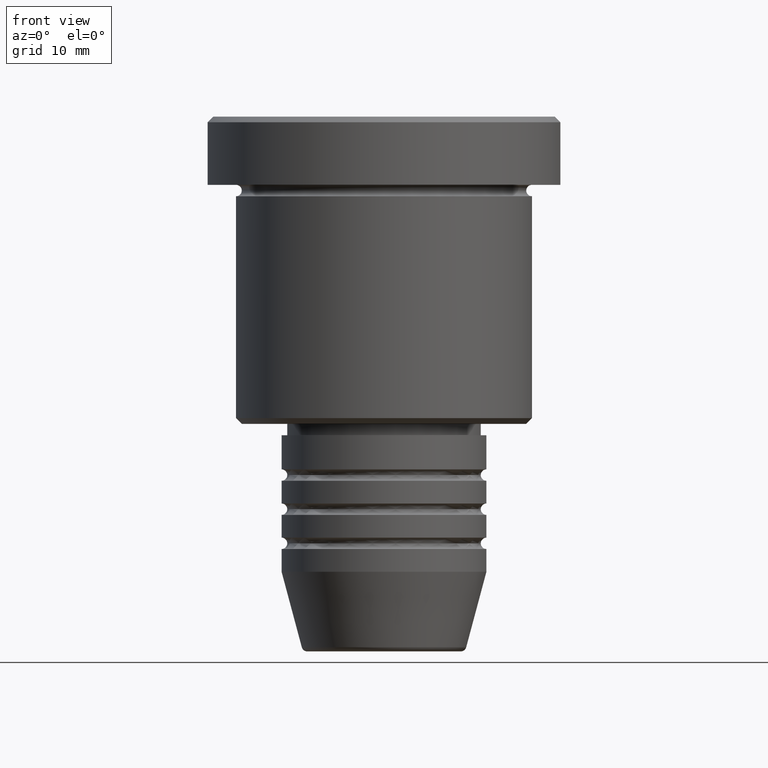
[diagram: clean part render]
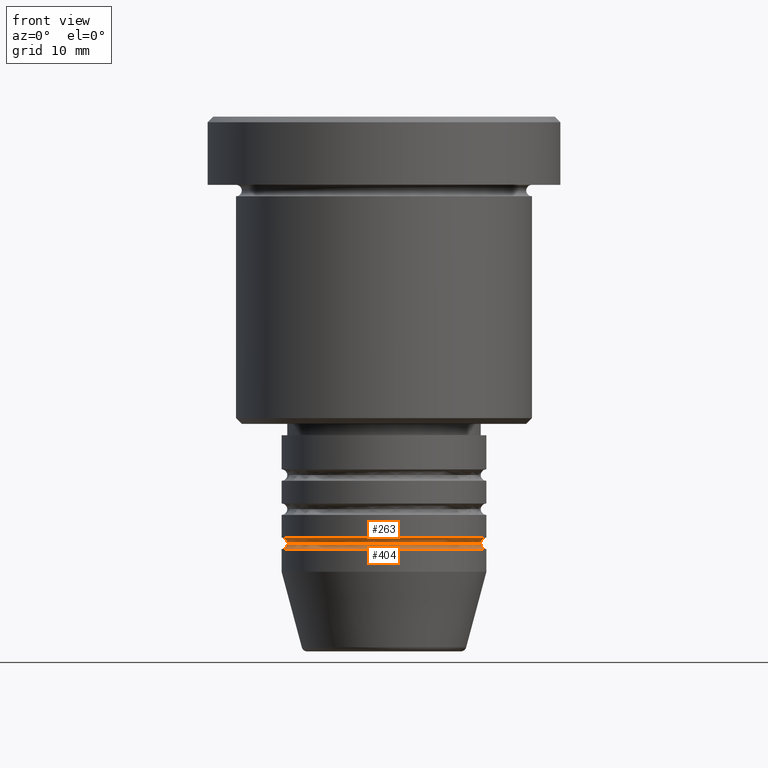
[diagram: same view with one multi-face feature highlighted, each face labeled with its STEP entity id]
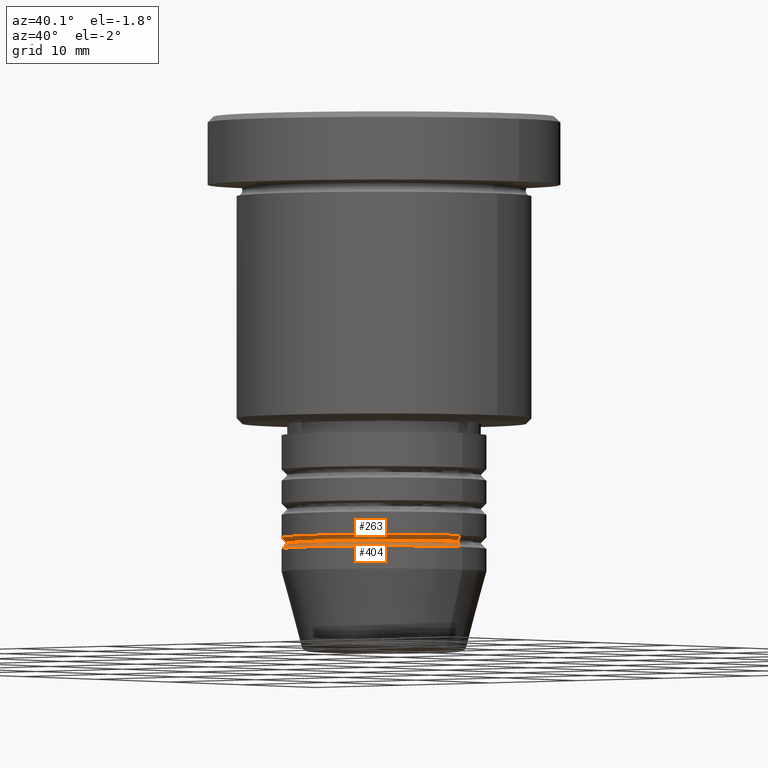
[diagram: same view with one multi-face feature highlighted, each face labeled with its STEP entity id]
A machine part, front view. The highlighted faces form ONE feature: a constant-radius fillet chain: 2 tangent blend faces with common blend radius 0.5 mm. The faces share edges in the B-rep.
A second angle (auxiliary view) of the same feature is appended — it is thin or edge-on in the first view.
Their STEP definitions:
[1] entity #404 (Torus):
#1 = CARTESIAN_POINT ( 'NONE',  ( -9.000000000000001776, 1.102182119232617911E-15, -37.49999999999999289 ) ) ;
#25 = VERTEX_POINT ( 'NONE', #124 ) ;
#124 = CARTESIAN_POINT ( 'NONE',  ( 8.500000000000000000, 0.000000000000000000, -37.49999999999999289 ) ) ;
#197 = ORIENTED_EDGE ( 'NONE', *, *, #983, .T. ) ;
#203 = CIRCLE ( 'NONE', #1178, 9.000000000000000000 ) ;
#226 = DIRECTION ( 'NONE',  ( -0.000000000000000000, -0.000000000000000000, 1.000000000000000000 ) ) ;
#259 = DIRECTION ( 'NONE',  ( -0.000000000000000000, -0.000000000000000000, 1.000000000000000000 ) ) ;
#286 = CIRCLE ( 'NONE', #949, 0.5000000000000004441 ) ;
#303 = CIRCLE ( 'NONE', #550, 8.500000000000000000 ) ;
#350 = DIRECTION ( 'NONE',  ( 0.000000000000000000, -1.000000000000000000, 0.000000000000000000 ) ) ;
#388 = EDGE_LOOP ( 'NONE', ( #428, #197, #1015, #552 ) ) ;
#402 = TOROIDAL_SURFACE ( 'NONE', #756, 9.000000000000001776, 0.5000000000000000000 ) ;
#404 = ADVANCED_FACE ( 'NONE', ( #690 ), #402, .F. ) ;
#412 = CARTESIAN_POINT ( 'NONE',  ( 0.000000000000000000, 0.000000000000000000, -37.49999999999999289 ) ) ;
#419 = CIRCLE ( 'NONE', #1087, 0.5000000000000004441 ) ;
#428 = ORIENTED_EDGE ( 'NONE', *, *, #1012, .F. ) ;
#452 = DIRECTION ( 'NONE',  ( -0.000000000000000000, -0.000000000000000000, 1.000000000000000000 ) ) ;
#550 = AXIS2_PLACEMENT_3D ( 'NONE', #618, #259, #1105 ) ;
#552 = ORIENTED_EDGE ( 'NONE', *, *, #1111, .F. ) ;
#618 = CARTESIAN_POINT ( 'NONE',  ( 0.000000000000000000, 0.000000000000000000, -37.49999999999999289 ) ) ;
#629 = CARTESIAN_POINT ( 'NONE',  ( 0.000000000000000000, 0.000000000000000000, -38.00000000000000000 ) ) ;
#690 = FACE_OUTER_BOUND ( 'NONE', #388, .T. ) ;
#728 = VERTEX_POINT ( 'NONE', #766 ) ;
#756 = AXIS2_PLACEMENT_3D ( 'NONE', #412, #226, #761 ) ;
#761 = DIRECTION ( 'NONE',  ( 1.000000000000000000, 0.000000000000000000, 0.000000000000000000 ) ) ;
#766 = CARTESIAN_POINT ( 'NONE',  ( -8.500000000000000000, 1.071565949253933927E-15, -37.49999999999999289 ) ) ;
#803 = DIRECTION ( 'NONE',  ( -1.000000000000000000, 1.224646799147353454E-16, 0.000000000000000000 ) ) ;
#805 = DIRECTION ( 'NONE',  ( 0.000000000000000000, 0.000000000000000000, -1.000000000000000000 ) ) ;
#810 = DIRECTION ( 'NONE',  ( 1.000000000000000000, 0.000000000000000000, 0.000000000000000000 ) ) ;
#813 = EDGE_CURVE ( 'NONE', #1014, #1080, #203, .T. ) ;
#949 = AXIS2_PLACEMENT_3D ( 'NONE', #1, #1165, #803 ) ;
#983 = EDGE_CURVE ( 'NONE', #728, #1014, #286, .T. ) ;
#1012 = EDGE_CURVE ( 'NONE', #728, #25, #303, .T. ) ;
#1014 = VERTEX_POINT ( 'NONE', #1023 ) ;
#1015 = ORIENTED_EDGE ( 'NONE', *, *, #813, .T. ) ;
#1023 = CARTESIAN_POINT ( 'NONE',  ( -9.000000000000000000, 1.102182119232617714E-15, -38.00000000000000000 ) ) ;
#1079 = CARTESIAN_POINT ( 'NONE',  ( 9.000000000000001776, 0.000000000000000000, -37.49999999999999289 ) ) ;
#1080 = VERTEX_POINT ( 'NONE', #1123 ) ;
#1087 = AXIS2_PLACEMENT_3D ( 'NONE', #1079, #350, #805 ) ;
#1105 = DIRECTION ( 'NONE',  ( 1.000000000000000000, 0.000000000000000000, 0.000000000000000000 ) ) ;
#1111 = EDGE_CURVE ( 'NONE', #25, #1080, #419, .T. ) ;
#1123 = CARTESIAN_POINT ( 'NONE',  ( 9.000000000000000000, 0.000000000000000000, -38.00000000000000000 ) ) ;
#1165 = DIRECTION ( 'NONE',  ( 1.224646799147353207E-16, 1.000000000000000000, 0.000000000000000000 ) ) ;
#1178 = AXIS2_PLACEMENT_3D ( 'NONE', #629, #452, #810 ) ;
[2] entity #263 (Torus):
#25 = VERTEX_POINT ( 'NONE', #124 ) ;
#55 = EDGE_CURVE ( 'NONE', #1058, #493, #401, .T. ) ;
#100 = CARTESIAN_POINT ( 'NONE',  ( -9.000000000000000000, 1.102182119232617714E-15, -36.99999999999998579 ) ) ;
#116 = ORIENTED_EDGE ( 'NONE', *, *, #365, .T. ) ;
#124 = CARTESIAN_POINT ( 'NONE',  ( 8.500000000000000000, 0.000000000000000000, -37.49999999999999289 ) ) ;
#133 = EDGE_LOOP ( 'NONE', ( #968, #116, #711, #1152 ) ) ;
#142 = TOROIDAL_SURFACE ( 'NONE', #771, 9.000000000000001776, 0.5000000000000000000 ) ;
#183 = AXIS2_PLACEMENT_3D ( 'NONE', #212, #1126, #831 ) ;
#212 = CARTESIAN_POINT ( 'NONE',  ( -9.000000000000001776, 0.000000000000000000, -37.49999999999998579 ) ) ;
#259 = DIRECTION ( 'NONE',  ( -0.000000000000000000, -0.000000000000000000, 1.000000000000000000 ) ) ;
#263 = ADVANCED_FACE ( 'NONE', ( #499 ), #142, .F. ) ;
#268 = CARTESIAN_POINT ( 'NONE',  ( 9.000000000000000000, 0.000000000000000000, -36.99999999999998579 ) ) ;
#287 = CIRCLE ( 'NONE', #183, 0.5000000000000004441 ) ;
#303 = CIRCLE ( 'NONE', #550, 8.500000000000000000 ) ;
#365 = EDGE_CURVE ( 'NONE', #25, #493, #947, .T. ) ;
#391 = CARTESIAN_POINT ( 'NONE',  ( 9.000000000000001776, 1.102182119232617911E-15, -37.49999999999998579 ) ) ;
#401 = CIRCLE ( 'NONE', #999, 9.000000000000000000 ) ;
#409 = DIRECTION ( 'NONE',  ( -1.000000000000000000, -1.224646799147353454E-16, 0.000000000000000000 ) ) ;
#488 = DIRECTION ( 'NONE',  ( -1.224646799147353207E-16, 1.000000000000000000, 0.000000000000000000 ) ) ;
#493 = VERTEX_POINT ( 'NONE', #268 ) ;
#499 = FACE_OUTER_BOUND ( 'NONE', #133, .T. ) ;
#534 = AXIS2_PLACEMENT_3D ( 'NONE', #391, #488, #409 ) ;
#540 = DIRECTION ( 'NONE',  ( -0.000000000000000000, -0.000000000000000000, 1.000000000000000000 ) ) ;
#550 = AXIS2_PLACEMENT_3D ( 'NONE', #618, #259, #1105 ) ;
#618 = CARTESIAN_POINT ( 'NONE',  ( 0.000000000000000000, 0.000000000000000000, -37.49999999999999289 ) ) ;
#659 = CARTESIAN_POINT ( 'NONE',  ( 0.000000000000000000, 0.000000000000000000, -37.49999999999998579 ) ) ;
#711 = ORIENTED_EDGE ( 'NONE', *, *, #55, .F. ) ;
#728 = VERTEX_POINT ( 'NONE', #766 ) ;
#752 = DIRECTION ( 'NONE',  ( -1.000000000000000000, 0.000000000000000000, 0.000000000000000000 ) ) ;
#766 = CARTESIAN_POINT ( 'NONE',  ( -8.500000000000000000, 1.071565949253933927E-15, -37.49999999999999289 ) ) ;
#771 = AXIS2_PLACEMENT_3D ( 'NONE', #659, #926, #752 ) ;
#800 = DIRECTION ( 'NONE',  ( 1.000000000000000000, 0.000000000000000000, 0.000000000000000000 ) ) ;
#831 = DIRECTION ( 'NONE',  ( 0.000000000000000000, 0.000000000000000000, -1.000000000000000000 ) ) ;
#894 = CARTESIAN_POINT ( 'NONE',  ( 0.000000000000000000, 0.000000000000000000, -36.99999999999998579 ) ) ;
#926 = DIRECTION ( 'NONE',  ( 0.000000000000000000, 0.000000000000000000, -1.000000000000000000 ) ) ;
#947 = CIRCLE ( 'NONE', #534, 0.5000000000000004441 ) ;
#968 = ORIENTED_EDGE ( 'NONE', *, *, #1012, .T. ) ;
#999 = AXIS2_PLACEMENT_3D ( 'NONE', #894, #540, #800 ) ;
#1012 = EDGE_CURVE ( 'NONE', #728, #25, #303, .T. ) ;
#1058 = VERTEX_POINT ( 'NONE', #100 ) ;
#1105 = DIRECTION ( 'NONE',  ( 1.000000000000000000, 0.000000000000000000, 0.000000000000000000 ) ) ;
#1126 = DIRECTION ( 'NONE',  ( -0.000000000000000000, -1.000000000000000000, -0.000000000000000000 ) ) ;
#1151 = EDGE_CURVE ( 'NONE', #728, #1058, #287, .T. ) ;
#1152 = ORIENTED_EDGE ( 'NONE', *, *, #1151, .F. ) ;